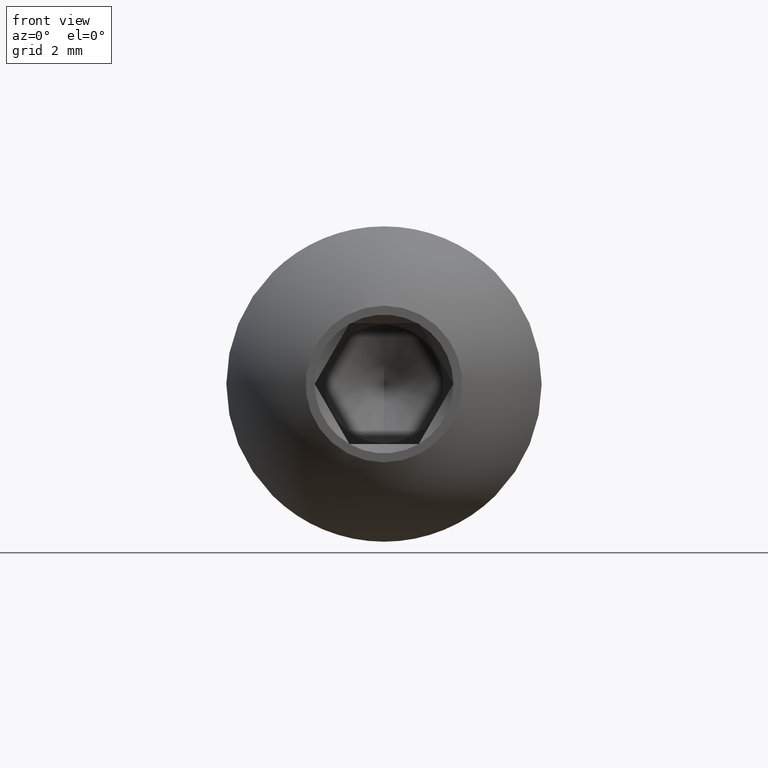
[diagram: clean part render]
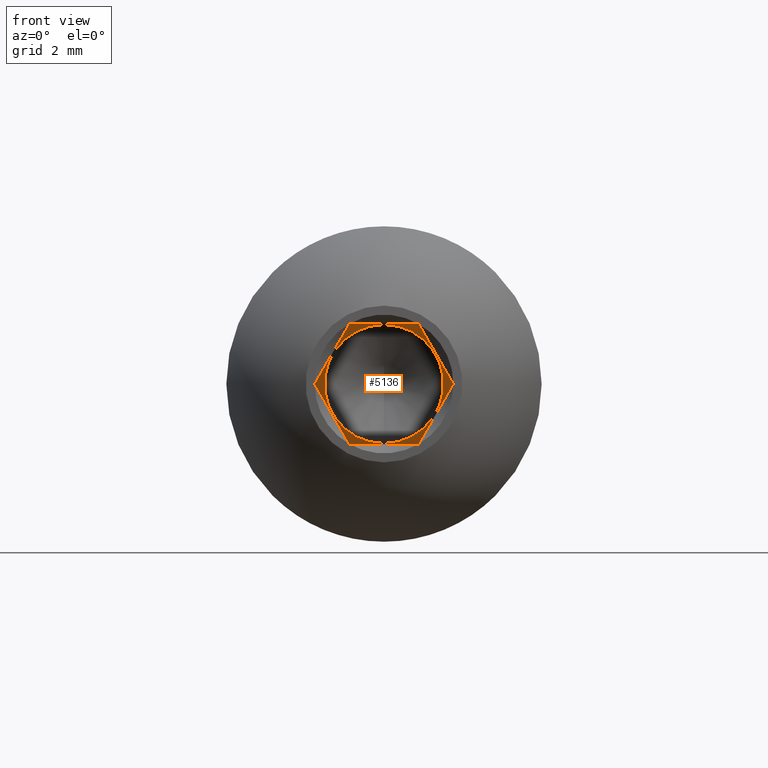
[diagram: same view with one face highlighted and labeled with its STEP entity id]
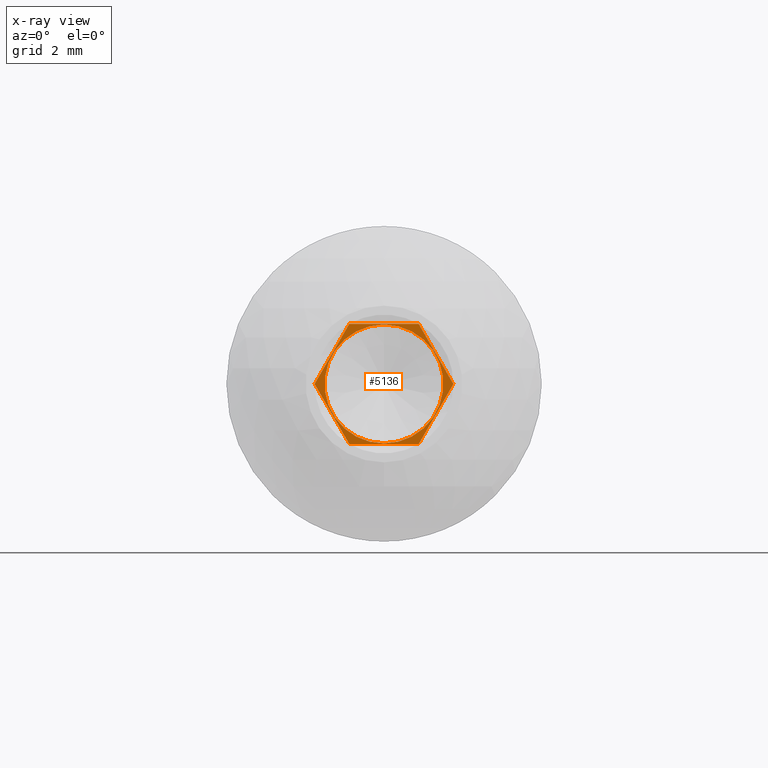
[diagram: x-ray of the same camera — body ghosted, the highlighted face saturated]
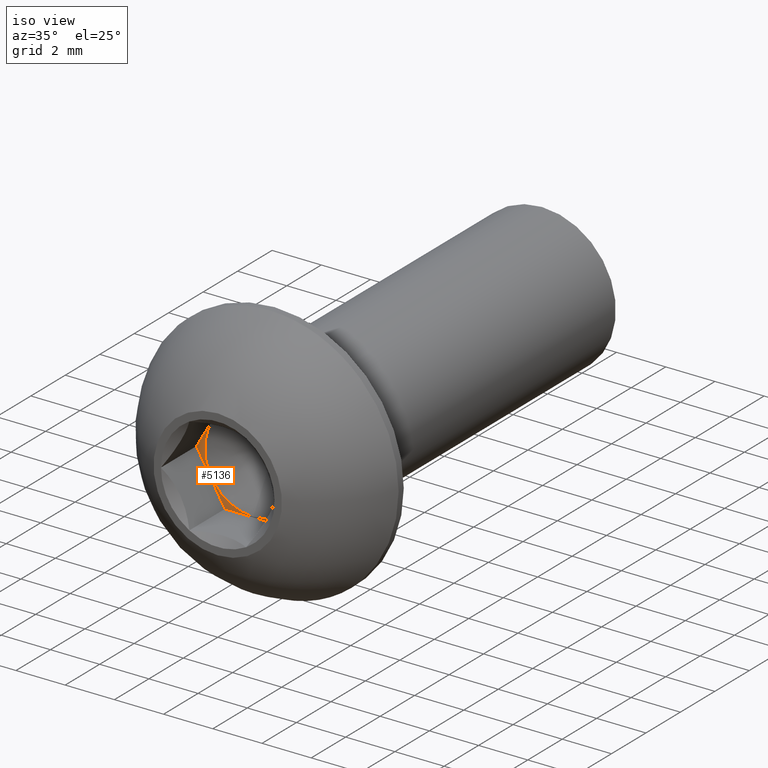
[diagram: same view with one face highlighted and labeled with its STEP entity id]
A machine part, front view. The second image highlights one B-rep face of the part: STEP entity #5136.
The next image is the same camera in x-ray: the body ghosted, the highlighted face saturated — about 0% of this face is hidden behind the body in this view.
A second angle (iso view) of the same face is appended — the face is thin or edge-on in the first view.
In plain terms, the highlighted planar face has unit normal (0, -1, 0).
Its self-contained STEP definition (entity closure, byte-faithful):
#443 = ORIENTED_EDGE ( 'NONE', *, *, #1769, .T. ) ;
#712 = ORIENTED_EDGE ( 'NONE', *, *, #12094, .F. ) ;
#783 = VERTEX_POINT ( 'NONE', #4791 ) ;
#961 = DIRECTION ( 'NONE',  ( 1.000000000000000000, 0.0000000000000000000, 0.0000000000000000000 ) ) ;
#1421 = VECTOR ( 'NONE', #1671, 1000.000000000000200 ) ;
#1594 = LINE ( 'NONE', #3349, #1764 ) ;
#1598 = EDGE_CURVE ( 'NONE', #6084, #6084, #11752, .T. ) ;
#1671 = DIRECTION ( 'NONE',  ( 0.4999999999999978900, 0.0000000000000000000, -0.8660254037844399300 ) ) ;
#1694 = LINE ( 'NONE', #7609, #14239 ) ;
#1764 = VECTOR ( 'NONE', #14197, 1000.000000000000000 ) ;
#1769 = EDGE_CURVE ( 'NONE', #9946, #783, #1594, .T. ) ;
#2239 = LINE ( 'NONE', #13997, #12221 ) ;
#2572 = DIRECTION ( 'NONE',  ( 0.4999999999999977800, 0.0000000000000000000, 0.8660254037844398200 ) ) ;
#2950 = CARTESIAN_POINT ( 'NONE',  ( -1.154700538379267900, 2.062499999999999600, -2.000000000000000900 ) ) ;
#3349 = CARTESIAN_POINT ( 'NONE',  ( -1.154700538379267900, 2.062499999999999600, 1.999999999999999600 ) ) ;
#3606 = CARTESIAN_POINT ( 'NONE',  ( 1.154700538379232100, 2.062499999999999600, -2.000000000000000900 ) ) ;
#3726 = CARTESIAN_POINT ( 'NONE',  ( 1.154700538379232100, 2.062499999999999600, 1.999999999999999600 ) ) ;
#4055 = CARTESIAN_POINT ( 'NONE',  ( -1.154700538379267900, 2.062499999999999600, 1.999999999999999600 ) ) ;
#4079 = CARTESIAN_POINT ( 'NONE',  ( 1.154700538379232100, 2.062499999999999600, 1.999999999999999600 ) ) ;
#4208 = LINE ( 'NONE', #3606, #10868 ) ;
#4791 = CARTESIAN_POINT ( 'NONE',  ( -2.309401076758476300, 2.062499999999999600, 1.326675390987758900E-016 ) ) ;
#4913 = VERTEX_POINT ( 'NONE', #10605 ) ;
#5008 = CARTESIAN_POINT ( 'NONE',  ( -1.154700538379267900, 2.062499999999999600, -2.000000000000000900 ) ) ;
#5029 = FACE_OUTER_BOUND ( 'NONE', #8552, .T. ) ;
#5064 = AXIS2_PLACEMENT_3D ( 'NONE', #2950, #10620, #10671 ) ;
#5136 = ADVANCED_FACE ( 'NONE', ( #5029, #5365 ), #9516, .T. ) ;
#5365 = FACE_BOUND ( 'NONE', #5812, .T. ) ;
#5773 = AXIS2_PLACEMENT_3D ( 'NONE', #12982, #12940, #6349 ) ;
#5812 = EDGE_LOOP ( 'NONE', ( #8179 ) ) ;
#5905 = EDGE_CURVE ( 'NONE', #11184, #12759, #2239, .T. ) ;
#6084 = VERTEX_POINT ( 'NONE', #12607 ) ;
#6349 = DIRECTION ( 'NONE',  ( 0.0000000000000000000, 0.0000000000000000000, -1.000000000000000000 ) ) ;
#7020 = EDGE_CURVE ( 'NONE', #9946, #11786, #1694, .T. ) ;
#7160 = ORIENTED_EDGE ( 'NONE', *, *, #9404, .F. ) ;
#7351 = DIRECTION ( 'NONE',  ( -0.4999999999999858400, 0.0000000000000000000, 0.8660254037844468100 ) ) ;
#7454 = LINE ( 'NONE', #3726, #1421 ) ;
#7609 = CARTESIAN_POINT ( 'NONE',  ( -1.154700538379267900, 2.062499999999999600, 1.999999999999999600 ) ) ;
#7977 = VECTOR ( 'NONE', #7351, 1000.000000000000000 ) ;
#7991 = CARTESIAN_POINT ( 'NONE',  ( -1.154700538379267900, 2.062499999999999600, -2.000000000000000900 ) ) ;
#8179 = ORIENTED_EDGE ( 'NONE', *, *, #1598, .T. ) ;
#8552 = EDGE_LOOP ( 'NONE', ( #9100, #10202, #7160, #14210, #443, #712 ) ) ;
#9100 = ORIENTED_EDGE ( 'NONE', *, *, #5905, .T. ) ;
#9124 = CARTESIAN_POINT ( 'NONE',  ( 1.154700538379232100, 2.062499999999999600, -2.000000000000000900 ) ) ;
#9350 = LINE ( 'NONE', #5008, #7977 ) ;
#9404 = EDGE_CURVE ( 'NONE', #11786, #4913, #7454, .T. ) ;
#9516 = PLANE ( 'NONE',  #5064 ) ;
#9946 = VERTEX_POINT ( 'NONE', #4055 ) ;
#10202 = ORIENTED_EDGE ( 'NONE', *, *, #13398, .T. ) ;
#10605 = CARTESIAN_POINT ( 'NONE',  ( 2.309401076758477200, 2.062499999999999600, -4.329725882211680000E-016 ) ) ;
#10620 = DIRECTION ( 'NONE',  ( 0.0000000000000000000, -1.000000000000000000, 0.0000000000000000000 ) ) ;
#10671 = DIRECTION ( 'NONE',  ( 0.0000000000000000000, -0.0000000000000000000, -1.000000000000000000 ) ) ;
#10868 = VECTOR ( 'NONE', #2572, 1000.000000000000100 ) ;
#11184 = VERTEX_POINT ( 'NONE', #7991 ) ;
#11752 = CIRCLE ( 'NONE', #5773, 1.980000000000000000 ) ;
#11786 = VERTEX_POINT ( 'NONE', #4079 ) ;
#12094 = EDGE_CURVE ( 'NONE', #11184, #783, #9350, .T. ) ;
#12221 = VECTOR ( 'NONE', #13773, 1000.000000000000000 ) ;
#12607 = CARTESIAN_POINT ( 'NONE',  ( 0.0000000000000000000, 2.062499999999999600, -1.980000000000000000 ) ) ;
#12759 = VERTEX_POINT ( 'NONE', #9124 ) ;
#12940 = DIRECTION ( 'NONE',  ( -0.0000000000000000000, 1.000000000000000000, -0.0000000000000000000 ) ) ;
#12982 = CARTESIAN_POINT ( 'NONE',  ( 0.0000000000000000000, 2.062499999999999600, 0.0000000000000000000 ) ) ;
#13398 = EDGE_CURVE ( 'NONE', #12759, #4913, #4208, .T. ) ;
#13773 = DIRECTION ( 'NONE',  ( 1.000000000000000000, 0.0000000000000000000, 0.0000000000000000000 ) ) ;
#13997 = CARTESIAN_POINT ( 'NONE',  ( -1.154700538379267900, 2.062499999999999600, -2.000000000000000900 ) ) ;
#14197 = DIRECTION ( 'NONE',  ( -0.4999999999999861200, 0.0000000000000000000, -0.8660254037844467000 ) ) ;
#14210 = ORIENTED_EDGE ( 'NONE', *, *, #7020, .F. ) ;
#14239 = VECTOR ( 'NONE', #961, 1000.000000000000000 ) ;